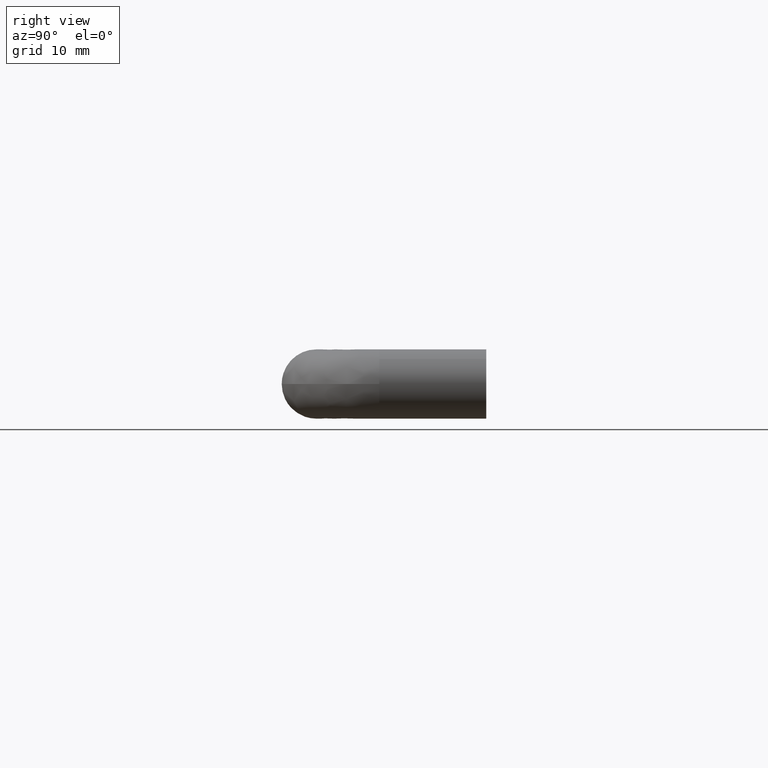
[diagram: clean part render]
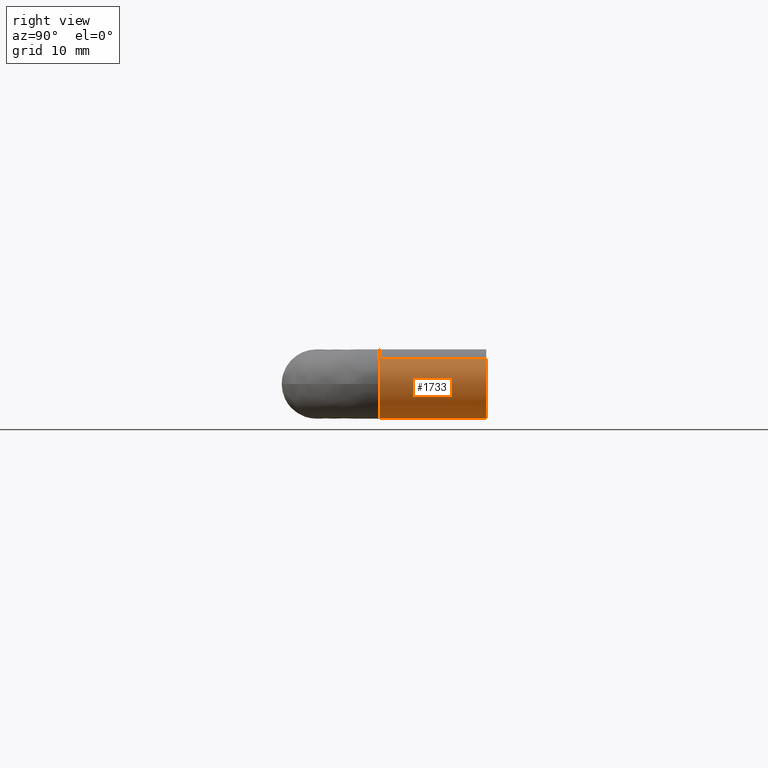
[diagram: same view with one face highlighted and labeled with its STEP entity id]
A machine part, right view. The second image highlights one B-rep face of the part: STEP entity #1733.
In plain terms, the highlighted face is a freeform B-spline surface patch.
Its self-contained STEP definition (entity closure, byte-faithful):
#1307=CARTESIAN_POINT('',(103.785949922371700,-1.915135E-015,3.989558855112626));
#1308=VERTEX_POINT('',#1307);
#1318=CARTESIAN_POINT('',(105.499999999999900,0.0,-0.000001211437119));
#1319=VERTEX_POINT('',#1318);
#1320=CARTESIAN_POINT('',(103.785949922371700,-1.915135E-015,3.989558855112626));
#1321=CARTESIAN_POINT('',(104.038931373380290,-1.799915E-015,3.749536662118389));
#1322=CARTESIAN_POINT('',(104.514349565675400,-1.537819E-015,3.203544555419345));
#1323=CARTESIAN_POINT('',(105.060040163265000,-1.080269E-015,2.250388400911198));
#1324=CARTESIAN_POINT('',(105.416956219341600,-5.579892E-016,1.162387549042313));
#1325=CARTESIAN_POINT('',(105.500057047168700,-1.897230E-016,0.395224886189381));
#1326=CARTESIAN_POINT('',(105.499999999999900,0.0,-0.000001211437119));
#1327=B_SPLINE_CURVE_WITH_KNOTS('',3,(#1320,#1321,#1322,#1323,#1324,#1325,#1326),.UNSPECIFIED.,.F.,.U.,(4,1,1,1,4),(0.000000035017709,1.046181137017813,2.162128902013519,3.278036422431446,4.463710605844971),.UNSPECIFIED.);
#1328=EDGE_CURVE('',#1308,#1319,#1327,.T.);
#1330=CARTESIAN_POINT('',(100.0,0.0,-5.500000000000000));
#1331=VERTEX_POINT('',#1330);
#1332=CARTESIAN_POINT('',(105.499999999999900,0.0,-0.000001211437119));
#1333=CARTESIAN_POINT('',(105.500112790575700,0.0,-0.449971935956984));
#1334=CARTESIAN_POINT('',(105.400041742433200,0.0,-1.259867642807931));
#1335=CARTESIAN_POINT('',(105.034433089605700,0.0,-2.281548529007286));
#1336=CARTESIAN_POINT('',(104.489654656130990,0.0,-3.243426744600425));
#1337=CARTESIAN_POINT('',(103.803237259035600,0.0,-4.029383837464970));
#1338=CARTESIAN_POINT('',(102.991086338269890,0.0,-4.639311067405785));
#1339=CARTESIAN_POINT('',(102.218048097492600,0.0,-5.058654701182529));
#1340=CARTESIAN_POINT('',(101.237367674600900,0.0,-5.402821020051916));
#1341=CARTESIAN_POINT('',(100.449969339341390,0.0,-5.500107090333666));
#1342=CARTESIAN_POINT('',(100.0,0.0,-5.500000000000000));
#1343=B_SPLINE_CURVE_WITH_KNOTS('',3,(#1332,#1333,#1334,#1335,#1336,#1337,#1338,#1339,#1340,#1341,#1342),.UNSPECIFIED.,.F.,.U.,(4,1,1,1,1,1,1,1,4),(0.000000121157399,1.349898503245159,2.429841278935949,3.239792978509057,4.657158033763508,5.534624620951124,6.277083893414385,7.289539299230681,8.639433323029941),.UNSPECIFIED.);
#1344=EDGE_CURVE('',#1319,#1331,#1343,.T.);
#1346=CARTESIAN_POINT('',(96.214050077191672,5.551115E-017,-3.989558854698234));
#1347=VERTEX_POINT('',#1346);
#1348=CARTESIAN_POINT('',(100.0,0.0,-5.500000000000000));
#1349=CARTESIAN_POINT('',(99.586771948798301,6.058919E-018,-5.500080609576278));
#1350=CARTESIAN_POINT('',(98.782120673546103,1.785705E-017,-5.408882746028681));
#1351=CARTESIAN_POINT('',(97.458742282153651,3.726096E-017,-4.952496552640327));
#1352=CARTESIAN_POINT('',(96.639790680203987,4.926877E-017,-4.394053485615169));
#1353=CARTESIAN_POINT('',(96.214050077191672,5.551115E-017,-3.989558854698234));
#1354=B_SPLINE_CURVE_WITH_KNOTS('',3,(#1348,#1349,#1350,#1351,#1352,#1353),.UNSPECIFIED.,.F.,.U.,(4,1,1,4),(0.000000028707944,1.239672310431663,2.414078846839158,4.175724555100207),.UNSPECIFIED.);
#1355=EDGE_CURVE('',#1331,#1347,#1354,.T.);
#1615=CARTESIAN_POINT('',(96.214049660516295,-16.999996661774940,-3.989559293187629));
#1616=VERTEX_POINT('',#1615);
#1644=CARTESIAN_POINT('',(103.785950131359100,-16.999989684924220,3.989559073736194));
#1645=VERTEX_POINT('',#1644);
#1655=CARTESIAN_POINT('',(103.785950131359100,-16.999989684924220,3.989559073736194));
#1656=CARTESIAN_POINT('',(103.785949922371700,-1.915135E-015,3.989558855112626));
#1657=QUASI_UNIFORM_CURVE('',1,(#1655,#1656),.UNSPECIFIED.,.F.,.U.);
#1658=EDGE_CURVE('',#1645,#1308,#1657,.T.);
#1663=CARTESIAN_POINT('',(96.214049660516295,-16.999996661774940,-3.989559293187629));
#1664=CARTESIAN_POINT('',(96.214050077191672,5.551115E-017,-3.989558854698234));
#1665=QUASI_UNIFORM_CURVE('',1,(#1663,#1664),.UNSPECIFIED.,.F.,.U.);
#1666=EDGE_CURVE('',#1616,#1347,#1665,.T.);
#1671=CARTESIAN_POINT('',(103.785950166315600,-17.425000000142521,3.989559040567581));
#1672=CARTESIAN_POINT('',(107.775509206883230,-17.425000000142521,0.203608874251935));
#1673=CARTESIAN_POINT('',(103.989559040567600,-17.425000000142521,-3.785950166315646));
#1674=CARTESIAN_POINT('',(100.203608874251940,-17.425000000142521,-7.775509206883227));
#1675=CARTESIAN_POINT('',(96.214049833684356,-17.425000000142521,-3.989559040567581));
#1676=CARTESIAN_POINT('',(103.785950166315600,0.435625000003562,3.989559040567581));
#1677=CARTESIAN_POINT('',(107.775509206883230,0.435625000003562,0.203608874251935));
#1678=CARTESIAN_POINT('',(103.989559040567600,0.435625000003562,-3.785950166315646));
#1679=CARTESIAN_POINT('',(100.203608874251940,0.435625000003562,-7.775509206883227));
#1680=CARTESIAN_POINT('',(96.214049833684356,0.435625000003562,-3.989559040567581));
#1688=(BOUNDED_SURFACE()B_SPLINE_SURFACE(2,1,((#1671,#1676),(#1672,#1677),(#1673,#1678),(#1674,#1679),(#1675,#1680)),.UNSPECIFIED.,.F.,.F.,.U.)B_SPLINE_SURFACE_WITH_KNOTS((3,2,3),(2,2),(0.0,9.112698372208088,18.225396744416180),(0.0,17.860625000146090),.UNSPECIFIED.)GEOMETRIC_REPRESENTATION_ITEM()RATIONAL_B_SPLINE_SURFACE(((1.0,1.0),(0.707106781186548,0.707106781186548),(1.0,1.0),(0.707106781186548,0.707106781186548),(1.0,1.0)))REPRESENTATION_ITEM('')SURFACE());
#1689=CARTESIAN_POINT('',(99.999998788548055,-16.999989288465880,-5.499999999999867));
#1690=VERTEX_POINT('',#1689);
#1691=CARTESIAN_POINT('',(99.999998788548055,-16.999989288465880,-5.499999999999867));
#1692=CARTESIAN_POINT('',(99.608521250954183,-16.999990050886261,-5.500066514865016));
#1693=CARTESIAN_POINT('',(98.934346272816853,-16.999991363872919,-5.427692351077805));
#1694=CARTESIAN_POINT('',(97.889396925867445,-16.999993398959528,-5.115199045291544));
#1695=CARTESIAN_POINT('',(96.996597529038112,-16.999995137727261,-4.649891355091345));
#1696=CARTESIAN_POINT('',(96.434902952442513,-16.999996231653029,-4.199151170781419));
#1697=CARTESIAN_POINT('',(96.214049660516295,-16.999996661774940,-3.989559293187629));
#1698=B_SPLINE_CURVE_WITH_KNOTS('',3,(#1691,#1692,#1693,#1694,#1695,#1696,#1697),.UNSPECIFIED.,.F.,.U.,(4,1,1,1,4),(0.000000028722352,1.174423684573732,2.022634137087764,3.262285457046619,4.175723573666593),.UNSPECIFIED.);
#1699=EDGE_CURVE('',#1690,#1616,#1698,.T.);
#1700=ORIENTED_EDGE('',*,*,#1699,.T.);
#1701=ORIENTED_EDGE('',*,*,#1666,.T.);
#1702=ORIENTED_EDGE('',*,*,#1355,.F.);
#1703=ORIENTED_EDGE('',*,*,#1344,.F.);
#1704=ORIENTED_EDGE('',*,*,#1328,.F.);
#1705=ORIENTED_EDGE('',*,*,#1658,.F.);
#1706=CARTESIAN_POINT('',(105.499999999970400,-16.999978576787989,-6.735335E-016));
#1707=VERTEX_POINT('',#1706);
#1708=CARTESIAN_POINT('',(103.785950131359100,-16.999989684924220,3.989559073736194));
#1709=CARTESIAN_POINT('',(104.038926441718000,-16.999988724773878,3.749534472125407));
#1710=CARTESIAN_POINT('',(104.545036250038510,-16.999986607182102,3.168340952646910));
#1711=CARTESIAN_POINT('',(105.102074972738290,-16.999983570465879,2.166140452390113));
#1712=CARTESIAN_POINT('',(105.431239217611800,-16.999980793464498,1.069419257173018));
#1713=CARTESIAN_POINT('',(105.500033991032890,-16.999979255886210,0.348725341861721));
#1714=CARTESIAN_POINT('',(105.499999999970400,-16.999978576787989,-6.735335E-016));
#1715=B_SPLINE_CURVE_WITH_KNOTS('',3,(#1708,#1709,#1710,#1711,#1712,#1713,#1714),.UNSPECIFIED.,.F.,.U.,(4,1,1,1,4),(0.000000035014075,1.046180881595799,2.301581176913839,3.417528669428263,4.463709516010036),.UNSPECIFIED.);
#1716=EDGE_CURVE('',#1645,#1707,#1715,.T.);
#1717=ORIENTED_EDGE('',*,*,#1716,.T.);
#1718=CARTESIAN_POINT('',(105.499999999970400,-16.999978576787989,-6.735335E-016));
#1719=CARTESIAN_POINT('',(105.500205815482900,-16.999978576387150,-0.517484382319944));
#1720=CARTESIAN_POINT('',(105.365631048092600,-16.999978838481940,-1.462295987105091));
#1721=CARTESIAN_POINT('',(104.855417005702190,-16.999979832163230,-2.672988920296016));
#1722=CARTESIAN_POINT('',(104.178501555382990,-16.999981150508489,-3.634110847595670));
#1723=CARTESIAN_POINT('',(103.436941451074800,-16.999982594754091,-4.331456134954200));
#1724=CARTESIAN_POINT('',(102.623802883128800,-16.999984178404642,-4.860407106086439));
#1725=CARTESIAN_POINT('',(101.529689502612700,-16.999986309274760,-5.345623326221933));
#1726=CARTESIAN_POINT('',(100.607504279231900,-16.999988105302059,-5.500337328455686));
#1727=CARTESIAN_POINT('',(99.999998788548055,-16.999989288465880,-5.499999999999867));
#1728=B_SPLINE_CURVE_WITH_KNOTS('',3,(#1718,#1719,#1720,#1721,#1722,#1723,#1724,#1725,#1726,#1727),.UNSPECIFIED.,.F.,.U.,(4,1,1,1,1,1,1,4),(0.000000120705979,1.552388542759794,2.834816185408580,3.914761279008661,5.062139039592227,5.872102669526660,6.817058114553811,8.639434688606059),.UNSPECIFIED.);
#1729=EDGE_CURVE('',#1707,#1690,#1728,.T.);
#1730=ORIENTED_EDGE('',*,*,#1729,.T.);
#1731=EDGE_LOOP('',(#1700,#1701,#1702,#1703,#1704,#1705,#1717,#1730));
#1732=FACE_OUTER_BOUND('',#1731,.T.);
#1733=ADVANCED_FACE('',(#1732),#1688,.T.);